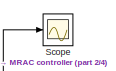
[diagram: root canvas - part 1/4, top center region]
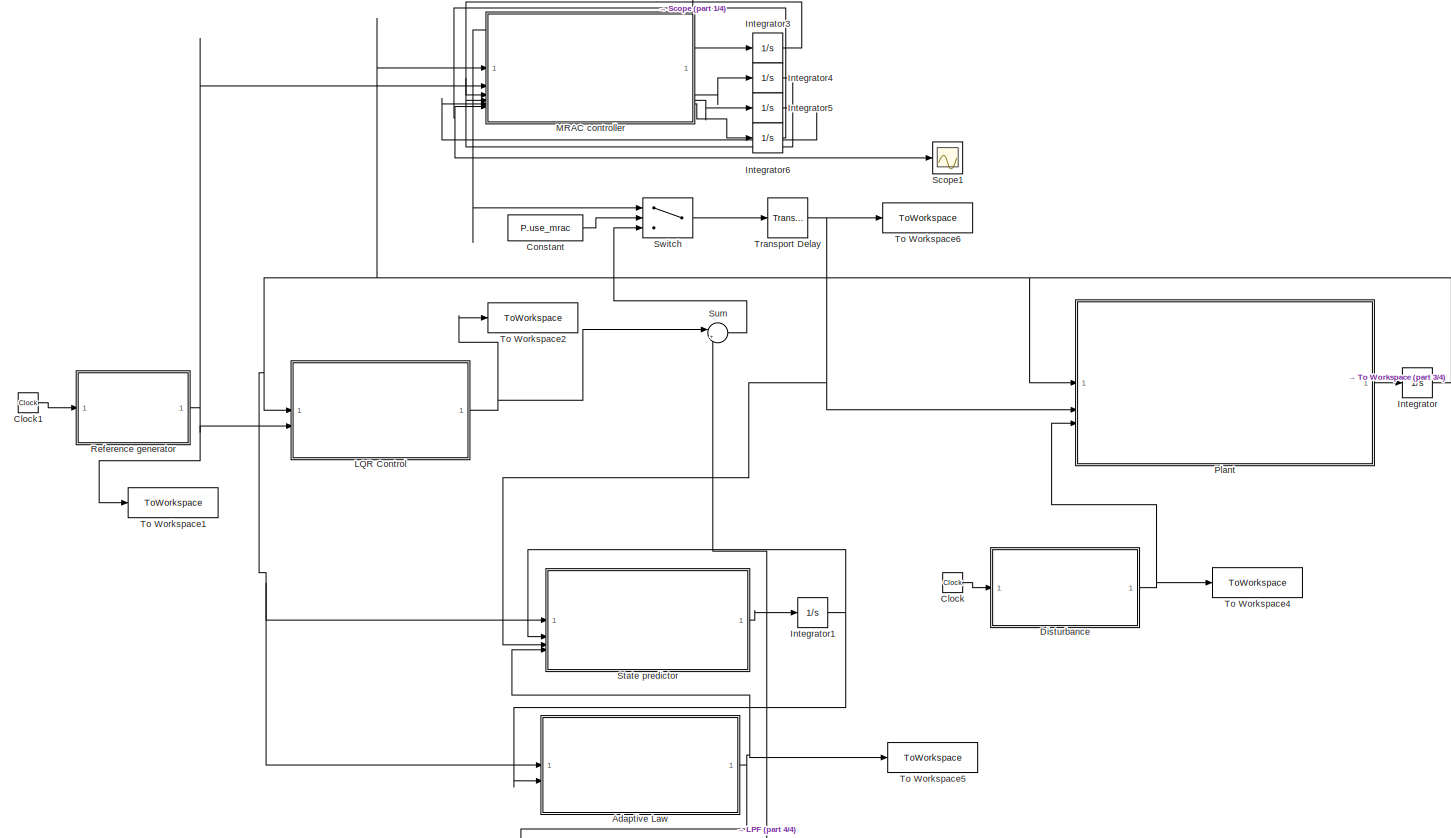
[diagram: root canvas - part 2/4, most of the canvas]
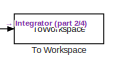
[diagram: root canvas - part 3/4, middle right region]
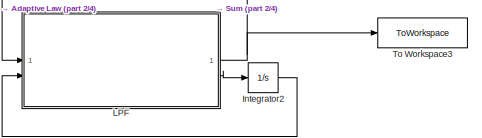
[diagram: root canvas - part 4/4, bottom center region]
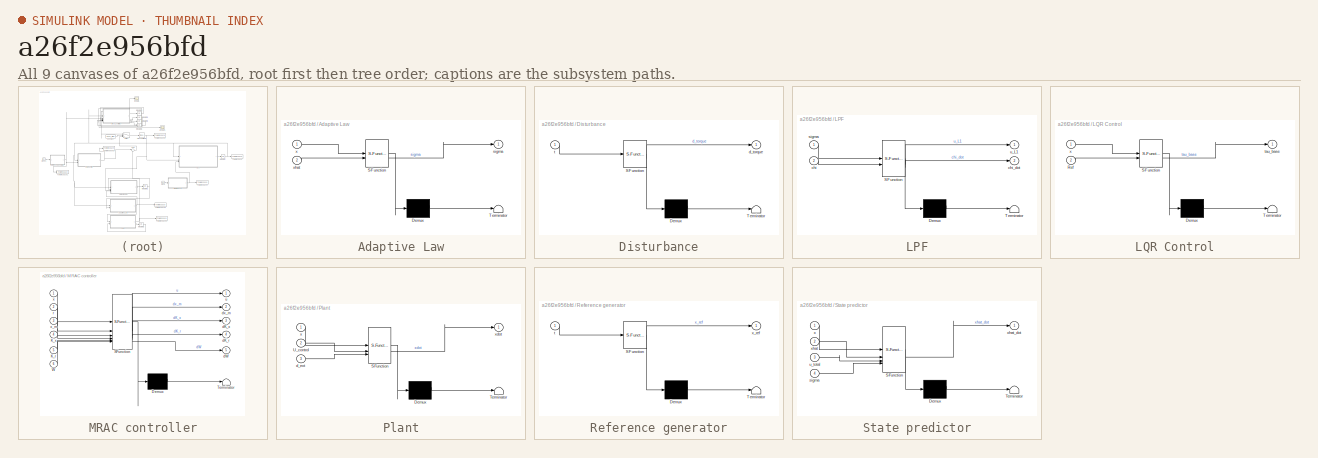
[diagram: thumbnail index - all 9 canvases of the model, root first then tree order]
MODEL slx_a26f2e956bfd
KIND model
CONFIG AbsTol = auto
CONFIG EnableMultiTasking = off
CONFIG FixedStep = auto
CONFIG MaxStep = auto
CONFIG MinStep = auto
CONFIG RelTol = 1e-3
CONFIG SampleTimeConstraint = Unconstrained
CONFIG SolverName = VariableStepAuto
CONFIG StartTime = 0.0
CONFIG StopTime = 10.0
BLOCK [SubSystem] Adaptive Law
  ErrorFcn = Stateflow.Translate.translate
  PermitHierarchicalResolution = ExplicitOnly
  SFBlockType = MATLAB Function
  TreatAsAtomicUnit = on
BLOCK [Demux] Adaptive Law/ Demux 
  Outputs = 1
BLOCK [S-Function] Adaptive Law/ SFunction 
  EnableBusSupport = off
  FunctionName = sf_sfun
  Parameters = P
  PortCounts = [2 2]
  SFcnIsStateOwnerBlock = off
  SFunctionDeploymentMode = off
  Tag = Stateflow S-Function 4
BLOCK [Terminator] Adaptive Law/ Terminator 
BLOCK [Outport] Adaptive Law/sigma
BLOCK [Inport] Adaptive Law/x
BLOCK [Inport] Adaptive Law/xhat
  Port = 2
BLOCK [Clock] Clock
BLOCK [Clock] Clock1
BLOCK [Constant] Constant
  Value = P.use_mrac
BLOCK [SubSystem] Disturbance
  ErrorFcn = Stateflow.Translate.translate
  PermitHierarchicalResolution = ExplicitOnly
  SFBlockType = MATLAB Function
  TreatAsAtomicUnit = on
BLOCK [Demux] Disturbance/ Demux 
  Outputs = 1
BLOCK [S-Function] Disturbance/ SFunction 
  EnableBusSupport = off
  FunctionName = sf_sfun
  Parameters = P
  PortCounts = [1 2]
  SFcnIsStateOwnerBlock = off
  SFunctionDeploymentMode = off
  Tag = Stateflow S-Function 7
BLOCK [Terminator] Disturbance/ Terminator 
BLOCK [Outport] Disturbance/d_torque
BLOCK [Inport] Disturbance/t
BLOCK [Integrator] Integrator
BLOCK [Integrator] Integrator1
BLOCK [Integrator] Integrator2
BLOCK [Integrator] Integrator3
BLOCK [Integrator] Integrator4
  InitialCondition = zeros(3,6)
BLOCK [Integrator] Integrator5
  InitialCondition = zeros(3,6)
BLOCK [Integrator] Integrator6
  InitialCondition = zeros(6,3)
BLOCK [SubSystem] LPF
  ErrorFcn = Stateflow.Translate.translate
  PermitHierarchicalResolution = ExplicitOnly
  SFBlockType = MATLAB Function
  TreatAsAtomicUnit = on
BLOCK [Demux] LPF/ Demux 
  Outputs = 1
BLOCK [S-Function] LPF/ SFunction 
  EnableBusSupport = off
  FunctionName = sf_sfun
  Parameters = P
  PortCounts = [2 3]
  SFcnIsStateOwnerBlock = off
  SFunctionDeploymentMode = off
  Tag = Stateflow S-Function 5
BLOCK [Terminator] LPF/ Terminator 
BLOCK [Inport] LPF/chi
  Port = 2
BLOCK [Outport] LPF/chi_dot
  Port = 2
BLOCK [Inport] LPF/sigma
BLOCK [Outport] LPF/u_L1
BLOCK [SubSystem] LQR Control
  ErrorFcn = Stateflow.Translate.translate
  PermitHierarchicalResolution = ExplicitOnly
  SFBlockType = MATLAB Function
  TreatAsAtomicUnit = on
BLOCK [Demux] LQR Control/ Demux 
  Outputs = 1
BLOCK [S-Function] LQR Control/ SFunction 
  EnableBusSupport = off
  FunctionName = sf_sfun
  Parameters = P
  PortCounts = [2 2]
  SFcnIsStateOwnerBlock = off
  SFunctionDeploymentMode = off
  Tag = Stateflow S-Function 1
BLOCK [Terminator] LQR Control/ Terminator 
BLOCK [Inport] LQR Control/Ref
  Port = 2
BLOCK [Outport] LQR Control/tau_base
BLOCK [Inport] LQR Control/x
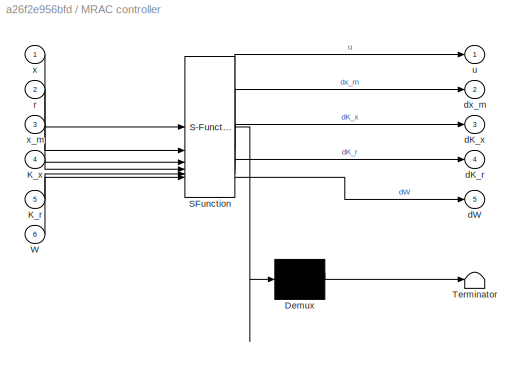
BLOCK [SubSystem] MRAC controller
  ErrorFcn = Stateflow.Translate.translate
  PermitHierarchicalResolution = ExplicitOnly
  SFBlockType = MATLAB Function
  TreatAsAtomicUnit = on
BLOCK [Demux] MRAC controller/ Demux 
  Outputs = 1
BLOCK [S-Function] MRAC controller/ SFunction 
  EnableBusSupport = off
  FunctionName = sf_sfun
  Parameters = P
  PortCounts = [6 6]
  SFcnIsStateOwnerBlock = off
  SFunctionDeploymentMode = off
  Tag = Stateflow S-Function 8
BLOCK [Terminator] MRAC controller/ Terminator 
BLOCK [Inport] MRAC controller/K_r
  Port = 5
BLOCK [Inport] MRAC controller/K_x
  Port = 4
BLOCK [Inport] MRAC controller/W
  Port = 6
BLOCK [Outport] MRAC controller/dK_r
  Port = 4
BLOCK [Outport] MRAC controller/dK_x
  Port = 3
BLOCK [Outport] MRAC controller/dW
  Port = 5
BLOCK [Outport] MRAC controller/dx_m
  Port = 2
BLOCK [Inport] MRAC controller/r
  Port = 2
BLOCK [Outport] MRAC controller/u
BLOCK [Inport] MRAC controller/x
BLOCK [Inport] MRAC controller/x_m
  Port = 3
BLOCK [SubSystem] Plant
  ErrorFcn = Stateflow.Translate.translate
  PermitHierarchicalResolution = ExplicitOnly
  SFBlockType = MATLAB Function
  TreatAsAtomicUnit = on
BLOCK [Demux] Plant/ Demux 
  Outputs = 1
BLOCK [S-Function] Plant/ SFunction 
  EnableBusSupport = off
  FunctionName = sf_sfun
  Parameters = P
  PortCounts = [3 2]
  SFcnIsStateOwnerBlock = off
  SFunctionDeploymentMode = off
  Tag = Stateflow S-Function 2
BLOCK [Terminator] Plant/ Terminator 
BLOCK [Inport] Plant/U_control
  Port = 2
BLOCK [Inport] Plant/d_ext
  Port = 3
BLOCK [Inport] Plant/x
BLOCK [Outport] Plant/xdot
BLOCK [SubSystem] Reference generator
  ErrorFcn = Stateflow.Translate.translate
  PermitHierarchicalResolution = ExplicitOnly
  SFBlockType = MATLAB Function
  TreatAsAtomicUnit = on
BLOCK [Demux] Reference generator/ Demux 
  Outputs = 1
BLOCK [S-Function] Reference generator/ SFunction 
  EnableBusSupport = off
  FunctionName = sf_sfun
  Parameters = P
  PortCounts = [1 2]
  SFcnIsStateOwnerBlock = off
  SFunctionDeploymentMode = off
  Tag = Stateflow S-Function 6
BLOCK [Terminator] Reference generator/ Terminator 
BLOCK [Inport] Reference generator/t
BLOCK [Outport] Reference generator/x_ref
BLOCK [Scope] Scope
  ActiveDisplayYMaximum = 0.88826024956797955
  ActiveDisplayYMinimum = -0.18899254495545503
  Floating = off
  GraphicalSettings = {"Style":{"BackgroundColor":[0.12941176470588237,0.12941176470588237,0.12941176470588237],"AxesColor":[0.07058823529411765,0.07058823529411765,0.07058823529411765],"LabelsColor":[0.8509803921568627,0.8509803921568627,0.8509803921568627],"PreserveColors":false,"Visible":[true,true,true],"LineStyle":["-","-","-"],"LineWidth":[1.5,1.5,1.5],"BarWidth":[0.9,0.9,0.9],"LineColor":["auto","auto","auto"],"...<+2302ch>
  MultipleDisplayCache = [{"MaxYLimMag":0.88826024956797955,"MaxYLimReal":0.88826024956797955,"MinYLimMag":0,"MinYLimReal":-0.18899254495545503,"PlotAsMagnitudePhase":false,"ShowGrid":true,"ShowLegend":false,"Title":"%<SignalLabel>","YLabel":""}]
  NumInputPorts = 1
  ScopeFrameLocation = window
  WasSavedAsWebScope = on
  WindowPosition = [620.000000,375.000000,560.000000,420.000000,]
BLOCK [Scope] Scope1
  ActiveDisplayYMaximum = 47.040865807014455
  ActiveDisplayYMinimum = -17.081145138179366
  DataLoggingVariableName = ScopeData1
  Floating = off
  GraphicalSettings = {"Style":{"BackgroundColor":[0.12941176470588237,0.12941176470588237,0.12941176470588237],"AxesColor":[0.07058823529411765,0.07058823529411765,0.07058823529411765],"LabelsColor":[0.8509803921568627,0.8509803921568627,0.8509803921568627],"PreserveColors":false,"Visible":[true,true,true,true,true,true,true,true,true,true,true,true,true,true,true,true,true,true],"LineStyle":["-","-","-","-","-","-","...<+4654ch>
  MultipleDisplayCache = [{"MaxYLimMag":51.364739251219,"MaxYLimReal":47.040865807014455,"MinYLimMag":0,"MinYLimReal":-17.081145138179366,"PlotAsMagnitudePhase":false,"ShowGrid":true,"ShowLegend":false,"Title":"%<SignalLabel>","YLabel":""}]
  NumInputPorts = 1
  ScopeFrameLocation = window
  WasSavedAsWebScope = on
  WindowPosition = [620.000000,375.000000,560.000000,420.000000,]
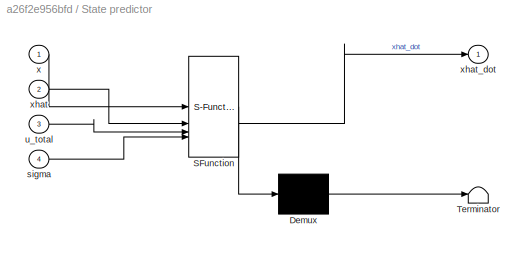
BLOCK [SubSystem] State predictor
  ErrorFcn = Stateflow.Translate.translate
  PermitHierarchicalResolution = ExplicitOnly
  SFBlockType = MATLAB Function
  TreatAsAtomicUnit = on
BLOCK [Demux] State predictor/ Demux 
  Outputs = 1
BLOCK [S-Function] State predictor/ SFunction 
  EnableBusSupport = off
  FunctionName = sf_sfun
  Parameters = P
  PortCounts = [4 2]
  SFcnIsStateOwnerBlock = off
  SFunctionDeploymentMode = off
  Tag = Stateflow S-Function 3
BLOCK [Terminator] State predictor/ Terminator 
BLOCK [Inport] State predictor/sigma
  Port = 4
BLOCK [Inport] State predictor/u_total
  Port = 3
BLOCK [Inport] State predictor/x
BLOCK [Inport] State predictor/xhat
  Port = 2
BLOCK [Outport] State predictor/xhat_dot
BLOCK [Sum] Sum
  Inputs = |++
BLOCK [Switch] Switch
  Criteria = u2 > Threshold
  InputSameDT = off
  SaturateOnIntegerOverflow = off
  Threshold = 0.5
BLOCK [ToWorkspace] To Workspace
  FixptAsFi = on
  MaxDataPoints = inf
  SampleTime = -1
  SaveFormat = Timeseries
  VariableName = sim_x
BLOCK [ToWorkspace] To Workspace1
  FixptAsFi = on
  MaxDataPoints = inf
  SampleTime = -1
  SaveFormat = Timeseries
  VariableName = sim_ref
BLOCK [ToWorkspace] To Workspace2
  FixptAsFi = on
  MaxDataPoints = inf
  SampleTime = -1
  SaveFormat = Timeseries
  VariableName = sim_u_base
BLOCK [ToWorkspace] To Workspace3
  FixptAsFi = on
  MaxDataPoints = inf
  SampleTime = -1
  SaveFormat = Timeseries
  VariableName = sim_u_L1
BLOCK [ToWorkspace] To Workspace4
  FixptAsFi = on
  MaxDataPoints = inf
  SampleTime = -1
  SaveFormat = Timeseries
  VariableName = sim_dist
BLOCK [ToWorkspace] To Workspace5
  FixptAsFi = on
  MaxDataPoints = inf
  SampleTime = -1
  SaveFormat = Timeseries
  VariableName = sim_sigma
BLOCK [ToWorkspace] To Workspace6
  FixptAsFi = on
  MaxDataPoints = inf
  SampleTime = -1
  SaveFormat = Timeseries
  VariableName = sim_u_mrac
BLOCK [TransportDelay] Transport Delay
  BufferSize = 1000000
  DelayTime = P.loop_delay
NET Adaptive Law:1 -> LPF:1, State predictor:4, To Workspace5:1
LINE Clock1:1 -> Reference generator:1
LINE Clock:1 -> Disturbance:1
LINE Constant:1 -> Switch:2
NET Disturbance:1 -> Plant:3, To Workspace4:1
NET Integrator1:1 -> Adaptive Law:2, State predictor:2
LINE Integrator2:1 -> LPF:2
LINE Integrator3:1 -> MRAC controller:3
LINE Integrator4:1 -> MRAC controller:4
LINE Integrator5:1 -> MRAC controller:5
NET Integrator6:1 -> MRAC controller:6, Scope1:1
NET Integrator:1 -> Adaptive Law:1, LQR Control:1, MRAC controller:1, Plant:1, State predictor:1, To Workspace:1
NET LPF:1 -> Sum:2, To Workspace3:1
LINE LPF:2 -> Integrator2:1
NET LQR Control:1 -> Sum:1, To Workspace2:1
NET MRAC controller:1 -> Scope:1, Switch:1
LINE MRAC controller:2 -> Integrator3:1
LINE MRAC controller:3 -> Integrator4:1
LINE MRAC controller:4 -> Integrator5:1
LINE MRAC controller:5 -> Integrator6:1
LINE Plant:1 -> Integrator:1
NET Reference generator:1 -> LQR Control:2, MRAC controller:2, To Workspace1:1
LINE State predictor:1 -> Integrator1:1
LINE Sum:1 -> Switch:3
LINE Switch:1 -> Transport Delay:1
NET Transport Delay:1 -> Plant:2, State predictor:3, To Workspace6:1
note: NET lines group one-source signal fan-out (src -> all destinations, sorted); 1:1 wires keep LINE
CHART LQR Control states=1 transitions=1
  STATE_LABEL 'eML_blk_kernel()'
  STATE_LABEL 'SCRIPT:\nfunction tau_base = LQR_Control(x, Ref, P)\n    % Standard State Feedback\n    error = x - Ref;\n    tau_base = -P.K * error;\nend'
CHART Plant states=1 transitions=1
  STATE_LABEL 'eML_blk_kernel()'
  STATE_LABEL 'SCRIPT:\nfunction xdot = PlantDynamics(x, U_control, d_ext, P)\n    % Unpack parameters\n    Ix = P.Ix; Iy = P.Iy; Iz = P.Iz; L = P.L;\n    \n    % States\n    % x = [phi, theta, psi, p, q, r]\n    p = x(4); q = x(5); r = x(6);\n    \n    % Total Torque = Control Input + External Disturbance\n    % U_control is [U2(Roll), U3(Pitch), U4(Yaw)] \n    % Note: In your script U2/U3 were forces multiplied by L insi...<+626ch>'
CHART State predictor states=1 transitions=1
  STATE_LABEL 'eML_blk_kernel()'
  STATE_LABEL 'SCRIPT:\nfunction xhat_dot = StatePredictor(x, xhat, u_total, sigma, P)\n    % Unpack sigma into Matched (m) and Unmatched (um)\n    sigma_m  = sigma(1:3);\n    sigma_um = sigma(4:6);\n    \n    xt = xhat - x;\n    \n    % Predictor Dynamics\n    % xhat_dot = A*xhat + Bm*(u + sigma_m) + Bum*sigma_um + Ae*xt\n    xhat_dot = P.A_true * xhat ...\n             + P.Bm * (u_total + sigma_m) ...\n             + P.Bu...<+46ch>'
CHART Adaptive Law states=1 transitions=1
  STATE_LABEL 'eML_blk_kernel()'
  STATE_LABEL 'SCRIPT:\nfunction sigma = AdaptiveLaw_PC(x, xhat, P)\n    % Define persistent variables to hold sigma for the interval\n    persistent sigma_hold\n    if isempty(sigma_hold)\n        sigma_hold = zeros(6,1);\n    end\n    \n    % Error\n    xt = xhat - x;\n    \n    % Calculations (Closed Form Piecewise Constant)\n    % Phi = Ae^-1 * (exp(Ae*Ts) - I)\n    % We calculate this dynamically or pass it in. \n    % F...<+376ch>'
CHART LPF states=1 transitions=1
  STATE_LABEL 'eML_blk_kernel()'
  STATE_LABEL 'SCRIPT:\nfunction [u_L1, chi_dot] = L1_LPF(sigma, chi, P)\n    % 1. Extract Matched Uncertainty\n    % The LPF only filters the matched component (first 3 elements)\n    sigma_m = sigma(1:3);\n    \n    % 2. Filter Dynamics (State Space)\n    % chi_dot = Alpf * chi + Blpf * sigma_m\n    chi_dot = P.Alpf * chi + P.Blpf * sigma_m;\n    \n    % 3. Calculate Control Signal\n    % u_L1 = - (Clpf * chi) \n    % We ...<+143ch>'
CHART Reference generator states=1 transitions=1
  STATE_LABEL 'eML_blk_kernel()'
  STATE_LABEL 'SCRIPT:\nfunction x_ref = ReferenceGen(t, P)\n    % P.ref_type: 0 = Step, 1 = Sine\n    \n    ref_roll = 0;\n    \n    if P.ref_type == 0\n        % --- STEP REFERENCE ---\n        if t >= P.ref_start\n            ref_roll = P.ref_amp;\n        end\n    else\n        % --- SINE REFERENCE ---\n        % Amplitude * sin(freq * t)\n        % Using fixed 0.5 rad/s freq for testing\n        ref_roll = P.ref_amp * sin...<+108ch>'
CHART Disturbance states=1 transitions=1
  STATE_LABEL 'eML_blk_kernel()'
  STATE_LABEL 'SCRIPT:\nfunction d_torque = DisturbanceGen(t, P)\n    % Generates disturbance torques (Nm) based on time\n    \n    d_phi   = P.dist_amp(1) * sin(P.dist_freq(1) * t);\n    d_theta = P.dist_amp(2) * sin(P.dist_freq(2) * t);\n    d_psi   = P.dist_amp(3) * sin(P.dist_freq(3) * t);\n    \n    d_torque = [d_phi; d_theta; d_psi];\nend'
CHART MRAC controller states=1 transitions=1
  STATE_LABEL 'eML_blk_kernel()'
  STATE_LABEL 'SCRIPT:\nfunction [u, dx_m, dK_x, dK_r, dW] = MRAC_Controller(x, r, x_m, K_x, K_r, W, P)\n    % --- 1. UNPACK PARAMETERS ---\n    Am = P.MRAC.Am;\n    Bm = P.MRAC.Bm;\n    Gam_x = P.MRAC.Gam_x;\n    Gam_r = P.MRAC.Gam_r;\n    Gam_w = P.MRAC.Gam_w; \n    P_lyap = P.MRAC.P_lyap;\n    B = P.Bm; \n    \n    % Bounds for Projection (from P struct)\n    th_x_max = P.MRAC.theta_x_max;\n    th_r_max = P.MRAC.theta_r_m...<+2761ch>'
CHART  states=0 transitions=0
CHART  states=0 transitions=0
CHART  states=0 transitions=0
CHART  states=0 transitions=0
CHART  states=0 transitions=0
CHART  states=0 transitions=0
CHART  states=0 transitions=0
CHART  states=0 transitions=0
